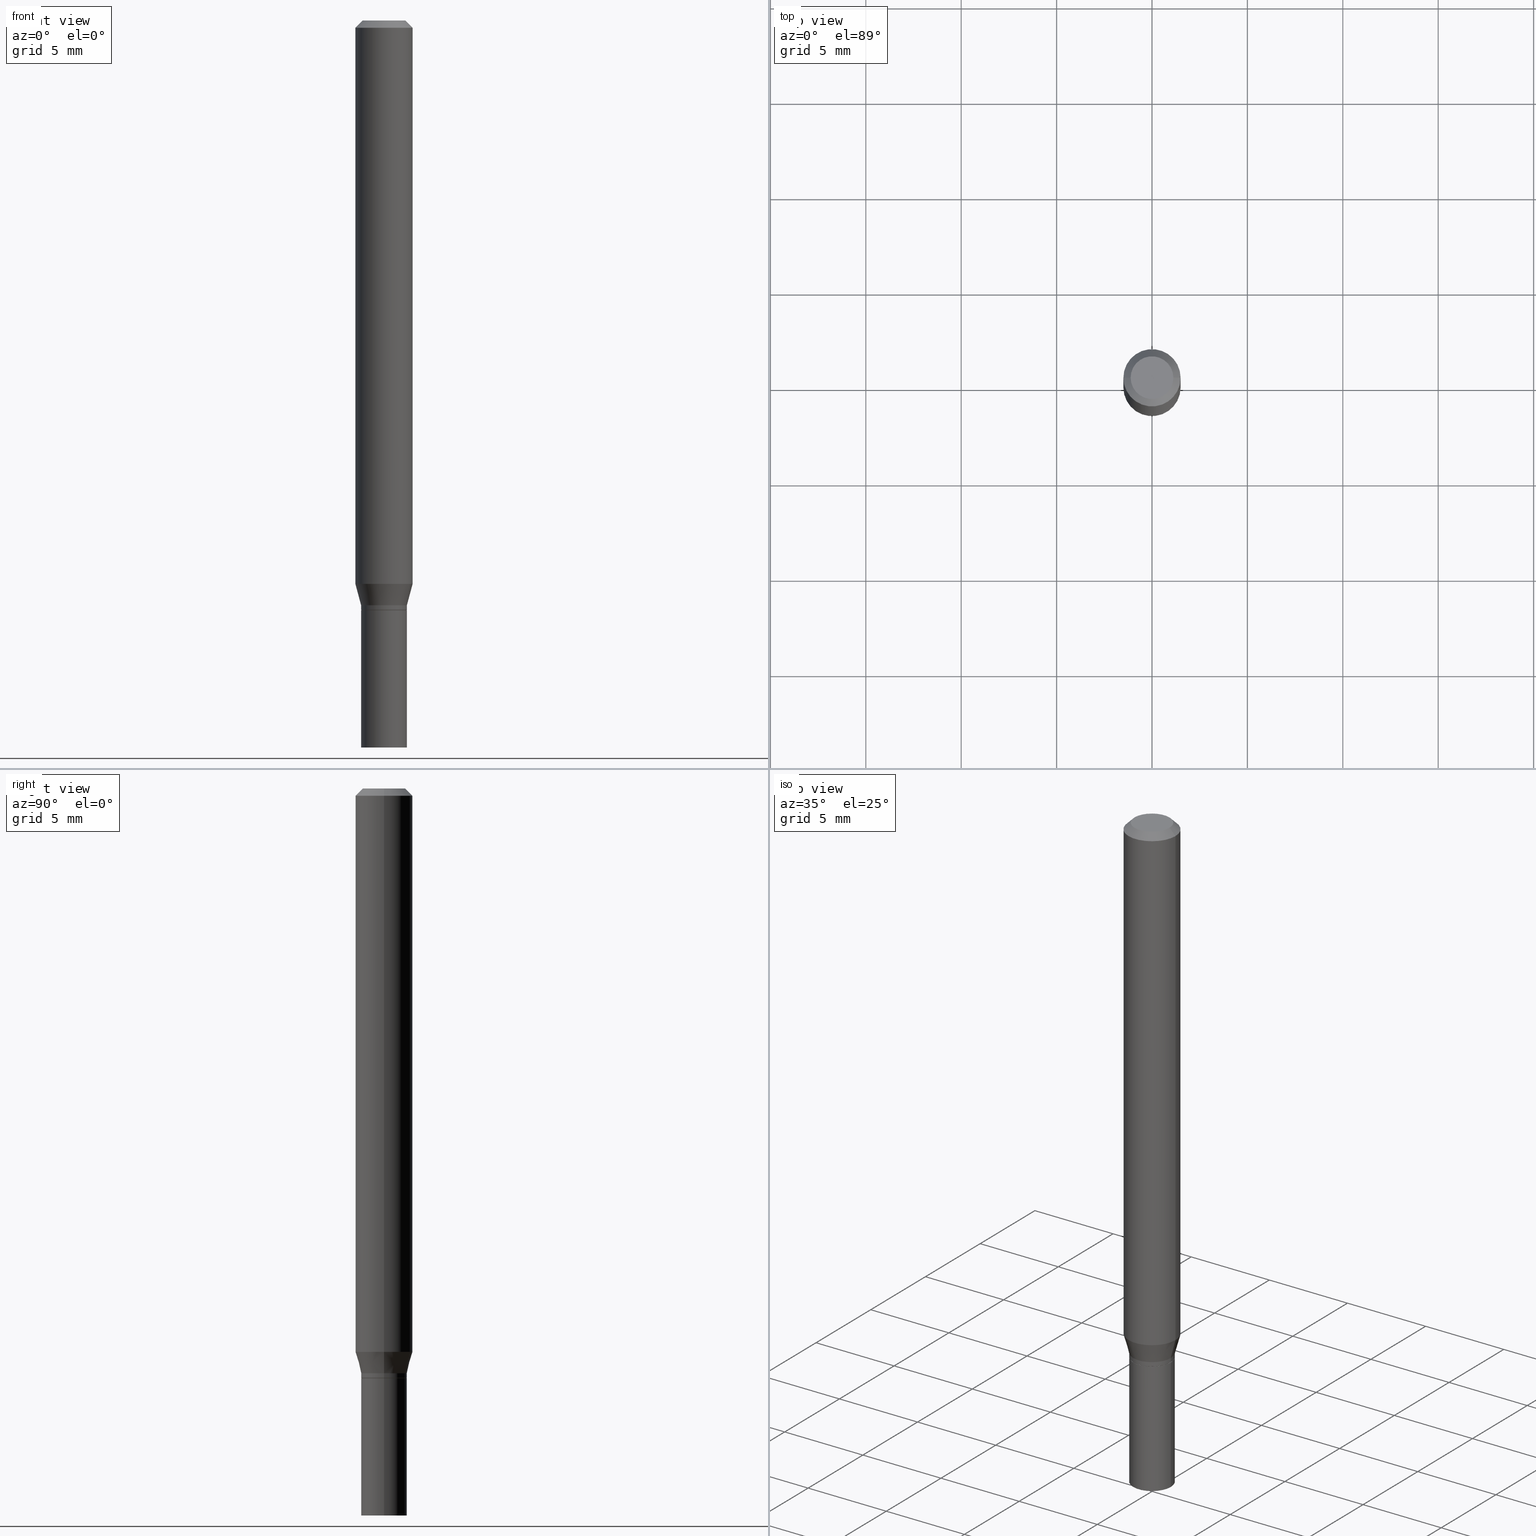
[diagram: canonical four-view strip — front | top / right | iso, engineering-drawing reading convention]
A machine part, canonical four-view strip (front | top / right | iso — engineering-drawing reading convention). The complete STEP part file that produces these views, byte-faithful:
ISO-10303-21;
HEADER;
FILE_DESCRIPTION (( 'STEP AP203' ),
    '1' );
FILE_NAME ('09277.STEP',
    '2024-03-14T18:16:35',
    ( '' ),
    ( '' ),
    'SwSTEP 2.0',
    'SolidWorks 2023',
    '' );
FILE_SCHEMA (( 'CONFIG_CONTROL_DESIGN' ));
ENDSEC;

DATA;
#1 = EDGE_CURVE ( 'NONE', #125, #414, #211, .T. ) ;
#2 = PERSON_AND_ORGANIZATION ( #185, #437 ) ;
#3 = AXIS2_PLACEMENT_3D ( 'NONE', #349, #136, #198 ) ;
#4 = CARTESIAN_POINT ( 'NONE',  ( 0.04674999999999999295, -4.573840553884519999E-15, -1.216500000000000137 ) ) ;
#5 = EDGE_LOOP ( 'NONE', ( #456, #96, #18, #8 ) ) ;
#6 = CARTESIAN_POINT ( 'NONE',  ( 2.974912802724219302E-29, -4.247387048702686999E-15, -1.216500000000000137 ) ) ;
#7 = DIRECTION ( 'NONE',  ( -2.445468806185136597E-29, 3.491481338843145583E-15, 1.000000000000000000 ) ) ;
#8 = ORIENTED_EDGE ( 'NONE', *, *, #351, .F. ) ;
#9 = VECTOR ( 'NONE', #209, 39.37007874015748143 ) ;
#10 = LOCAL_TIME ( 14, 16, 35.00000000000000000, #435 ) ;
#11 = DIRECTION ( 'NONE',  ( 0.7071067811865656694, -2.468850131082446387E-15, 0.7071067811865294761 ) ) ;
#12 = DIRECTION ( 'NONE',  ( 1.000000000000000000, -6.982962677686266711E-15, 0.000000000000000000 ) ) ;
#13 = DIRECTION ( 'NONE',  ( -0.7071067811865656694, 7.493145998870420424E-15, 0.7071067811865294761 ) ) ;
#14 = ORIENTED_EDGE ( 'NONE', *, *, #228, .T. ) ;
#15 = CARTESIAN_POINT ( 'NONE',  ( 2.950458114662367757E-29, -4.212472235314255350E-15, -1.206500000000000128 ) ) ;
#16 = EDGE_CURVE ( 'NONE', #450, #389, #199, .T. ) ;
#17 = CYLINDRICAL_SURFACE ( 'NONE', #345, 0.04725000000000005584 ) ;
#18 = ORIENTED_EDGE ( 'NONE', *, *, #42, .T. ) ;
#19 = DIRECTION ( 'NONE',  ( -1.000000000000000000, 6.982962677686266711E-15, 0.000000000000000000 ) ) ;
#20 = PLANE ( 'NONE',  #309 ) ;
#21 = ORIENTED_EDGE ( 'NONE', *, *, #210, .F. ) ;
#22 = PLANE ( 'NONE',  #169 ) ;
#23 = DIRECTION ( 'NONE',  ( 1.000000000000000000, -6.982962677686266711E-15, 4.876176775795936353E-29 ) ) ;
#24 = APPLICATION_CONTEXT ( 'configuration controlled 3d designs of mechanical parts and assemblies' ) ;
#25 = CARTESIAN_POINT ( 'NONE',  ( 2.950458114662367757E-29, -4.212472235314255350E-15, -1.206500000000000128 ) ) ;
#26 = EDGE_LOOP ( 'NONE', ( #162, #150, #332, #99 ) ) ;
#27 = APPROVAL ( #388, 'UNSPECIFIED' ) ;
#28 = CARTESIAN_POINT ( 'NONE',  ( 3.299449865207057376E-16, 0.04724999999999574679, -1.216500000000000359 ) ) ;
#29 = VECTOR ( 'NONE', #148, 39.37007874015748143 ) ;
#30 = CARTESIAN_POINT ( 'NONE',  ( 3.668203209277704895E-29, -5.237222008264718177E-15, -1.500000000000000222 ) ) ;
#31 = EDGE_CURVE ( 'NONE', #450, #371, #417, .T. ) ;
#32 = MECHANICAL_CONTEXT ( 'NONE', #255, 'mechanical' ) ;
#33 = AXIS2_PLACEMENT_3D ( 'NONE', #271, #94, #312 ) ;
#34 = DIRECTION ( 'NONE',  ( 2.438088387897960049E-29, -3.491481338843145188E-15, -1.000000000000000000 ) ) ;
#35 = PERSON_AND_ORGANIZATION_ROLE ( 'classification_officer' ) ;
#36 = DIRECTION ( 'NONE',  ( -2.445468806185136597E-29, 3.491481338843145583E-15, 1.000000000000000000 ) ) ;
#37 = ADVANCED_FACE ( 'NONE', ( #315 ), #286, .T. ) ;
#38 = DATE_AND_TIME ( #317, #182 ) ;
#39 = DIRECTION ( 'NONE',  ( 1.000000000000000000, -6.982962677686266711E-15, 0.000000000000000000 ) ) ;
#40 = VECTOR ( 'NONE', #166, 39.37007874015748143 ) ;
#41 = CIRCLE ( 'NONE', #445, 0.04725000000000005584 ) ;
#42 = EDGE_CURVE ( 'NONE', #256, #110, #108, .T. ) ;
#43 = DIRECTION ( 'NONE',  ( -2.445468806185136877E-29, 3.491481338843145188E-15, 1.000000000000000000 ) ) ;
#44 = DIMENSIONAL_EXPONENTS ( 1.000000000000000000, 0.000000000000000000, 0.000000000000000000, 0.000000000000000000, 0.000000000000000000, 0.000000000000000000, 0.000000000000000000 ) ;
#45 = DIRECTION ( 'NONE',  ( -2.445468806185136597E-29, 3.491481338843145583E-15, 1.000000000000000000 ) ) ;
#46 = ADVANCED_FACE ( 'NONE', ( #225 ), #436, .T. ) ;
#47 = DIRECTION ( 'NONE',  ( 1.000000000000000000, -6.982962677686266711E-15, 0.000000000000000000 ) ) ;
#48 = AXIS2_PLACEMENT_3D ( 'NONE', #404, #219, #122 ) ;
#49 = LOCAL_TIME ( 14, 16, 35.00000000000000000, #350 ) ;
#50 = CARTESIAN_POINT ( 'NONE',  ( 2.974912802724219302E-29, -4.247387048702686999E-15, -1.216500000000000137 ) ) ;
#51 = CARTESIAN_POINT ( 'NONE',  ( 3.668203209277704895E-29, -5.237222008264718177E-15, -1.500000000000000222 ) ) ;
#52 = CARTESIAN_POINT ( 'NONE',  ( 2.973690068321126501E-29, -4.245641308033265495E-15, -1.216000000000000192 ) ) ;
#53 = VECTOR ( 'NONE', #43, 39.37007874015748143 ) ;
#54 = CONICAL_SURFACE ( 'NONE', #235, 0.05904999999999999832, 0.7853981633974553844 ) ;
#55 = FACE_OUTER_BOUND ( 'NONE', #124, .T. ) ;
#56 = DIRECTION ( 'NONE',  ( 1.000000000000000000, -6.982962677686265922E-15, 4.888540261209747396E-29 ) ) ;
#57 = DIRECTION ( 'NONE',  ( -2.445468806185136597E-29, 3.491481338843145583E-15, 1.000000000000000000 ) ) ;
#58 = LINE ( 'NONE', #89, #40 ) ;
#59 = EDGE_CURVE ( 'NONE', #140, #256, #356, .T. ) ;
#60 = EDGE_LOOP ( 'NONE', ( #224, #201, #93, #269 ) ) ;
#61 = EDGE_CURVE ( 'NONE', #140, #389, #252, .T. ) ;
#62 = DIRECTION ( 'NONE',  ( 2.438088387897960049E-29, -3.491481338843145188E-15, -1.000000000000000000 ) ) ;
#63 = CIRCLE ( 'NONE', #227, 0.04725000000000005584 ) ;
#64 = APPROVAL_PERSON_ORGANIZATION ( #246, #27, #66 ) ;
#65 = APPROVAL ( #394, 'UNSPECIFIED' ) ;
#66 = APPROVAL_ROLE ( '' ) ;
#67 = FACE_OUTER_BOUND ( 'NONE', #342, .T. ) ;
#68 = PERSON_AND_ORGANIZATION ( #185, #437 ) ;
#69 = PERSON_AND_ORGANIZATION ( #185, #437 ) ;
#70 = AXIS2_PLACEMENT_3D ( 'NONE', #406, #329, #263 ) ;
#71 = LOCAL_TIME ( 14, 16, 35.00000000000000000, #208 ) ;
#72 = APPROVAL_ROLE ( '' ) ;
#73 = DIRECTION ( 'NONE',  ( -2.445468806185136597E-29, 3.491481338843145583E-15, 1.000000000000000000 ) ) ;
#74 = CARTESIAN_POINT ( 'NONE',  ( 3.668203209277705088E-31, -5.237222008264718399E-17, -0.01499999999999999944 ) ) ;
#75 = AXIS2_PLACEMENT_3D ( 'NONE', #372, #36, #216 ) ;
#76 = EDGE_LOOP ( 'NONE', ( #321, #88, #14, #384 ) ) ;
#77 = ADVANCED_FACE ( 'NONE', ( #427 ), #241, .T. ) ;
#78 = CARTESIAN_POINT ( 'NONE',  ( 2.973690068321126501E-29, -4.245641308033265495E-15, -1.216000000000000192 ) ) ;
#79 = DIRECTION ( 'NONE',  ( 1.000000000000000000, -6.982962677686266711E-15, 0.000000000000000000 ) ) ;
#80 = VERTEX_POINT ( 'NONE', #316 ) ;
#81 = CALENDAR_DATE ( 2024, 14, 3 ) ;
#82 = CARTESIAN_POINT ( 'NONE',  ( 0.05904999999999999832, -4.471057629578783928E-15, -1.162461800470687701 ) ) ;
#83 = ORIENTED_EDGE ( 'NONE', *, *, #288, .T. ) ;
#84 = DIRECTION ( 'NONE',  ( -2.445468806185136597E-29, 3.491481338843145583E-15, 1.000000000000000000 ) ) ;
#85 = DIRECTION ( 'NONE',  ( -2.445468806185136597E-29, 3.491481338843145583E-15, 1.000000000000000000 ) ) ;
#86 = UNCERTAINTY_MEASURE_WITH_UNIT (LENGTH_MEASURE( 1.000000000000000082E-05 ), #215, 'distance_accuracy_value', 'NONE');
#87 = DIRECTION ( 'NONE',  ( 1.000000000000000000, -6.982962677686256455E-15, 0.000000000000000000 ) ) ;
#88 = ORIENTED_EDGE ( 'NONE', *, *, #151, .T. ) ;
#89 = CARTESIAN_POINT ( 'NONE',  ( -0.04724999999999999339, 3.357314426466472909E-16, -2.324196830145442815E-30 ) ) ;
#90 = CARTESIAN_POINT ( 'NONE',  ( 3.075995059520799729E-16, 0.04404999999999999888, -2.583469029759998662E-16 ) ) ;
#91 = VECTOR ( 'NONE', #344, 39.37007874015748143 ) ;
#92 = FACE_OUTER_BOUND ( 'NONE', #264, .T. ) ;
#93 = ORIENTED_EDGE ( 'NONE', *, *, #257, .T. ) ;
#94 = DIRECTION ( 'NONE',  ( -2.445468806185136597E-29, 3.491481338843145583E-15, 1.000000000000000000 ) ) ;
#95 = VERTEX_POINT ( 'NONE', #243 ) ;
#96 = ORIENTED_EDGE ( 'NONE', *, *, #390, .T. ) ;
#97 = CARTESIAN_POINT ( 'NONE',  ( 3.668203209277705088E-31, -5.237222008264718399E-17, -0.01499999999999999944 ) ) ;
#98 = ADVANCED_FACE ( 'NONE', ( #214 ), #181, .T. ) ;
#99 = ORIENTED_EDGE ( 'NONE', *, *, #59, .F. ) ;
#100 =( NAMED_UNIT ( * ) SI_UNIT ( $, .STERADIAN. ) SOLID_ANGLE_UNIT ( ) );
#101 = AXIS2_PLACEMENT_3D ( 'NONE', #52, #57, #278 ) ;
#102 = AXIS2_PLACEMENT_3D ( 'NONE', #133, #200, #279 ) ;
#103 = DATE_TIME_ROLE ( 'creation_date' ) ;
#104 = EDGE_CURVE ( 'NONE', #80, #313, #63, .T. ) ;
#105 = ORIENTED_EDGE ( 'NONE', *, *, #421, .F. ) ;
#106 = DIRECTION ( 'NONE',  ( 1.000000000000000000, -6.982962677686266711E-15, 4.876176775795936353E-29 ) ) ;
#107 = DATE_AND_TIME ( #426, #10 ) ;
#108 = CIRCLE ( 'NONE', #294, 0.05904999999999999832 ) ;
#109 = CIRCLE ( 'NONE', #419, 0.04724999999999999339 ) ;
#110 = VERTEX_POINT ( 'NONE', #207 ) ;
#111 = DIRECTION ( 'NONE',  ( 1.000000000000000000, 0.000000000000000000, 0.000000000000000000 ) ) ;
#112 = CARTESIAN_POINT ( 'NONE',  ( 0.05904999999999999832, -4.123439461173740327E-16, 2.879382386107500220E-30 ) ) ;
#113 = APPROVAL ( #218, 'UNSPECIFIED' ) ;
#114 = DIRECTION ( 'NONE',  ( 1.000000000000000000, -6.982962677686266711E-15, 4.876176775795936353E-29 ) ) ;
#115 = CIRCLE ( 'NONE', #393, 0.04724999999999999339 ) ;
#116 = CARTESIAN_POINT ( 'NONE',  ( 2.974912802724219302E-29, -4.247387048702686999E-15, -1.216500000000000137 ) ) ;
#117 = DIRECTION ( 'NONE',  ( 1.000000000000000000, -6.982962677686266711E-15, 4.876176775795936353E-29 ) ) ;
#118 = ADVANCED_FACE ( 'NONE', ( #67 ), #20, .F. ) ;
#119 = LINE ( 'NONE', #226, #290 ) ;
#120 = DIRECTION ( 'NONE',  ( 1.000000000000000000, -6.982962677686265922E-15, 4.888540261209747396E-29 ) ) ;
#121 = CIRCLE ( 'NONE', #464, 0.04404999999999999888 ) ;
#122 = DIRECTION ( 'NONE',  ( 1.000000000000000000, -6.982962677686265922E-15, 4.876176775795935793E-29 ) ) ;
#123 = EDGE_CURVE ( 'NONE', #95, #233, #460, .T. ) ;
#124 = EDGE_LOOP ( 'NONE', ( #409, #306 ) ) ;
#125 = VERTEX_POINT ( 'NONE', #293 ) ;
#126 = DIRECTION ( 'NONE',  ( -2.445468806185136597E-29, 3.491481338843145583E-15, 1.000000000000000000 ) ) ;
#127 = ADVANCED_FACE ( 'NONE', ( #176 ), #303, .T. ) ;
#128 = CARTESIAN_POINT ( 'NONE',  ( -0.05904999999999999832, 3.599717260347268549E-16, -0.01499999999999999944 ) ) ;
#129 = AXIS2_PLACEMENT_3D ( 'NONE', #175, #446, #325 ) ;
#130 = VERTEX_POINT ( 'NONE', #259 ) ;
#131 = CARTESIAN_POINT ( 'NONE',  ( 0.05904999999999999832, -4.574846268510561447E-16, -0.01499999999999999944 ) ) ;
#132 = ORIENTED_EDGE ( 'NONE', *, *, #408, .F. ) ;
#133 = CARTESIAN_POINT ( 'NONE',  ( 2.974912802724219302E-29, -4.247387048702686999E-15, -1.216500000000000137 ) ) ;
#134 = APPLICATION_PROTOCOL_DEFINITION ( 'international standard', 'config_control_design', 1994, #24 ) ;
#135 = PRODUCT ( '09277', '09277', '', ( #32 ) ) ;
#136 = DIRECTION ( 'NONE',  ( -2.445468806185136597E-29, 3.491481338843145583E-15, 1.000000000000000000 ) ) ;
#137 = PERSON_AND_ORGANIZATION_ROLE ( 'creator' ) ;
#138 = PRODUCT_DEFINITION_SHAPE ( 'NONE', 'NONE',  #145 ) ;
#139 = CARTESIAN_POINT ( 'NONE',  ( 0.000000000000000000, 0.000000000000000000, 0.000000000000000000 ) ) ;
#140 = VERTEX_POINT ( 'NONE', #82 ) ;
#141 = PERSON_AND_ORGANIZATION_ROLE ( 'creator' ) ;
#142 = ADVANCED_FACE ( 'NONE', ( #398 ), #366, .T. ) ;
#143 = LENGTH_MEASURE_WITH_UNIT ( LENGTH_MEASURE( 0.02539999999999999897 ), #355 );
#144 = CIRCLE ( 'NONE', #405, 0.05904999999999999832 ) ;
#145 = PRODUCT_DEFINITION ( 'UNKNOWN', '', #254, #418 ) ;
#146 = CYLINDRICAL_SURFACE ( 'NONE', #386, 0.05904999999999999832 ) ;
#147 = ORIENTED_EDGE ( 'NONE', *, *, #273, .T. ) ;
#148 = DIRECTION ( 'NONE',  ( -2.445468806185136877E-29, 3.491481338843145188E-15, 1.000000000000000000 ) ) ;
#149 = VECTOR ( 'NONE', #11, 39.37007874015748143 ) ;
#150 = ORIENTED_EDGE ( 'NONE', *, *, #408, .T. ) ;
#151 = EDGE_CURVE ( 'NONE', #233, #95, #399, .T. ) ;
#152 = FACE_OUTER_BOUND ( 'NONE', #26, .T. ) ;
#153 = ORIENTED_EDGE ( 'NONE', *, *, #59, .T. ) ;
#154 = FACE_OUTER_BOUND ( 'NONE', #438, .T. ) ;
#155 = EDGE_LOOP ( 'NONE', ( #238, #186, #105, #369 ) ) ;
#156 = EDGE_LOOP ( 'NONE', ( #331, #168, #299, #444 ) ) ;
#157 = DIRECTION ( 'NONE',  ( -2.445468806185136597E-29, 3.491481338843145583E-15, 1.000000000000000000 ) ) ;
#158 = ADVANCED_FACE ( 'NONE', ( #261 ), #230, .F. ) ;
#159 = EDGE_LOOP ( 'NONE', ( #205, #411 ) ) ;
#160 = DIRECTION ( 'NONE',  ( -2.438088387897960049E-29, 3.491481338843145188E-15, 1.000000000000000000 ) ) ;
#161 = CC_DESIGN_PERSON_AND_ORGANIZATION_ASSIGNMENT ( #212, #35, ( #310 ) ) ;
#162 = ORIENTED_EDGE ( 'NONE', *, *, #61, .T. ) ;
#163 = CARTESIAN_POINT ( 'NONE',  ( 0.04725000000000005584, -4.542417221834932146E-15, -1.206500000000000128 ) ) ;
#164 = LINE ( 'NONE', #377, #91 ) ;
#165 = AXIS2_PLACEMENT_3D ( 'NONE', #74, #184, #453 ) ;
#166 = DIRECTION ( 'NONE',  ( -2.445468806185136877E-29, 3.491481338843145188E-15, 1.000000000000000000 ) ) ;
#167 = DIRECTION ( 'NONE',  ( 0.7071067811865524577, -7.319954787623271823E-15, -0.7071067811865424657 ) ) ;
#168 = ORIENTED_EDGE ( 'NONE', *, *, #292, .T. ) ;
#169 = AXIS2_PLACEMENT_3D ( 'NONE', #423, #160, #304 ) ;
#170 = PERSON_AND_ORGANIZATION ( #185, #437 ) ;
#171 = DIRECTION ( 'NONE',  ( 1.000000000000000000, -6.982962677686268288E-15, 0.000000000000000000 ) ) ;
#172 = DATE_AND_TIME ( #431, #324 ) ;
#173 = PERSON_AND_ORGANIZATION ( #185, #437 ) ;
#174 = CIRCLE ( 'NONE', #129, 0.05904999999999999832 ) ;
#175 = CARTESIAN_POINT ( 'NONE',  ( 3.668203209277705088E-31, -5.237222008264718399E-17, -0.01499999999999999944 ) ) ;
#176 = FACE_OUTER_BOUND ( 'NONE', #156, .T. ) ;
#177 = EDGE_CURVE ( 'NONE', #424, #130, #361, .T. ) ;
#178 = MANIFOLD_SOLID_BREP ( 'Body-Move/Copy2[2]', #443 ) ;
#179 = DATE_AND_TIME ( #81, #71 ) ;
#180 = LINE ( 'NONE', #4, #149 ) ;
#181 = CONICAL_SURFACE ( 'NONE', #428, 0.04674999999999999295, 0.7853981633974739252 ) ;
#182 = LOCAL_TIME ( 14, 16, 35.00000000000000000, #289 ) ;
#183 = EDGE_LOOP ( 'NONE', ( #132, #147, #153, #298 ) ) ;
#184 = DIRECTION ( 'NONE',  ( 2.445468806185136597E-29, -3.491481338843145583E-15, -1.000000000000000000 ) ) ;
#185 = PERSON ( 'UNSPECIFIED', 'UNSPECIFIED', 'UNSPECIFIED', ('UNSPECIFIED'), ('UNSPECIFIED'), ('UNSPECIFIED') ) ;
#186 = ORIENTED_EDGE ( 'NONE', *, *, #191, .T. ) ;
#187 = ORIENTED_EDGE ( 'NONE', *, *, #228, .F. ) ;
#188 = LINE ( 'NONE', #333, #452 ) ;
#189 = ORIENTED_EDGE ( 'NONE', *, *, #177, .T. ) ;
#190 = MANIFOLD_SOLID_BREP ( 'Body-Move/Copy2[1]', #202 ) ;
#191 = EDGE_CURVE ( 'NONE', #80, #450, #223, .T. ) ;
#192 = CARTESIAN_POINT ( 'NONE',  ( -0.04724999999999999339, -4.406573085837055149E-15, -1.216500000000000137 ) ) ;
#193 = CIRCLE ( 'NONE', #101, 0.04725000000000005584 ) ;
#194 = AXIS2_PLACEMENT_3D ( 'NONE', #28, #62, #204 ) ;
#195 = ORIENTED_EDGE ( 'NONE', *, *, #217, .T. ) ;
#196 = PLANE ( 'NONE',  #194 ) ;
#197 = DIRECTION ( 'NONE',  ( 2.445468806185136597E-29, -3.491481338843145583E-15, -1.000000000000000000 ) ) ;
#198 = DIRECTION ( 'NONE',  ( 1.000000000000000000, -6.982962677686273021E-15, 0.000000000000000000 ) ) ;
#199 = LINE ( 'NONE', #343, #268 ) ;
#200 = DIRECTION ( 'NONE',  ( -2.445468806185136597E-29, 3.491481338843145583E-15, 1.000000000000000000 ) ) ;
#201 = ORIENTED_EDGE ( 'NONE', *, *, #31, .T. ) ;
#202 = CLOSED_SHELL ( 'NONE', ( #127, #311, #346, #440 ) ) ;
#203 = VECTOR ( 'NONE', #270, 39.37007874015748143 ) ;
#204 = DIRECTION ( 'NONE',  ( -1.000000000000000000, 6.982962677686265922E-15, -4.876176775795935793E-29 ) ) ;
#205 = ORIENTED_EDGE ( 'NONE', *, *, #123, .F. ) ;
#206 = EDGE_CURVE ( 'NONE', #110, #256, #174, .T. ) ;
#207 = CARTESIAN_POINT ( 'NONE',  ( -0.05904999999999999832, -1.635967466305689734E-15, -0.01499999999999999944 ) ) ;
#208 = COORDINATED_UNIVERSAL_TIME_OFFSET ( 5, 0, .BEHIND. ) ;
#209 = DIRECTION ( 'NONE',  ( -2.445468806185136877E-29, 3.491481338843145188E-15, 1.000000000000000000 ) ) ;
#210 = EDGE_CURVE ( 'NONE', #424, #374, #115, .T. ) ;
#211 = CIRCLE ( 'NONE', #337, 0.04404999999999999888 ) ;
#212 = PERSON_AND_ORGANIZATION ( #185, #437 ) ;
#213 = APPROVAL_PERSON_ORGANIZATION ( #392, #65, #395 ) ;
#214 = FACE_OUTER_BOUND ( 'NONE', #76, .T. ) ;
#215 =( CONVERSION_BASED_UNIT ( 'INCH', #143 ) LENGTH_UNIT ( ) NAMED_UNIT ( #44 ) );
#216 = DIRECTION ( 'NONE',  ( 1.000000000000000000, -6.982962677686268288E-15, 0.000000000000000000 ) ) ;
#217 = EDGE_CURVE ( 'NONE', #233, #80, #188, .T. ) ;
#218 = APPROVAL_STATUS ( 'not_yet_approved' ) ;
#219 = DIRECTION ( 'NONE',  ( -2.438088387897960049E-29, 3.491481338843145188E-15, 1.000000000000000000 ) ) ;
#220 = AXIS2_PLACEMENT_3D ( 'NONE', #6, #157, #367 ) ;
#221 = CC_DESIGN_SECURITY_CLASSIFICATION ( #310, ( #254 ) ) ;
#222 = CARTESIAN_POINT ( 'NONE',  ( 2.842764071432877128E-29, -4.058713683461410585E-15, -1.162461800470687701 ) ) ;
#223 = LINE ( 'NONE', #370, #53 ) ;
#224 = ORIENTED_EDGE ( 'NONE', *, *, #16, .F. ) ;
#225 = FACE_OUTER_BOUND ( 'NONE', #60, .T. ) ;
#226 = CARTESIAN_POINT ( 'NONE',  ( 0.04725000000000005584, -4.542417221834932146E-15, -1.206500000000000128 ) ) ;
#227 = AXIS2_PLACEMENT_3D ( 'NONE', #78, #73, #441 ) ;
#228 = EDGE_CURVE ( 'NONE', #95, #313, #180, .T. ) ;
#229 = SHAPE_DEFINITION_REPRESENTATION ( #138, #357 ) ;
#230 = PLANE ( 'NONE',  #48 ) ;
#231 = CC_DESIGN_PERSON_AND_ORGANIZATION_ASSIGNMENT ( #2, #250, ( #135 ) ) ;
#232 = DIRECTION ( 'NONE',  ( -2.445468806185136597E-29, 3.491481338843145583E-15, 1.000000000000000000 ) ) ;
#233 = VERTEX_POINT ( 'NONE', #401 ) ;
#234 = DIRECTION ( 'NONE',  ( -2.445468806185136597E-29, 3.491481338843145583E-15, 1.000000000000000000 ) ) ;
#235 = AXIS2_PLACEMENT_3D ( 'NONE', #97, #197, #19 ) ;
#236 = CARTESIAN_POINT ( 'NONE',  ( -0.05904999999999999832, 4.195754854663391478E-16, -2.904631170795521892E-30 ) ) ;
#237 = ADVANCED_FACE ( 'NONE', ( #152 ), #146, .T. ) ;
#238 = ORIENTED_EDGE ( 'NONE', *, *, #300, .T. ) ;
#239 = CARTESIAN_POINT ( 'NONE',  ( 0.04724999999999999339, -5.567166994785394973E-15, -1.500000000000000222 ) ) ;
#240 = DIRECTION ( 'NONE',  ( -2.445468806185136597E-29, 3.491481338843145583E-15, 1.000000000000000000 ) ) ;
#241 = CYLINDRICAL_SURFACE ( 'NONE', #275, 0.05904999999999999832 ) ;
#242 = LINE ( 'NONE', #236, #203 ) ;
#243 = CARTESIAN_POINT ( 'NONE',  ( 0.04674999999999999295, -4.573840553884519999E-15, -1.216500000000000137 ) ) ;
#244 = CIRCLE ( 'NONE', #284, 0.04724999999999999339 ) ;
#245 =( GEOMETRIC_REPRESENTATION_CONTEXT ( 3 ) GLOBAL_UNCERTAINTY_ASSIGNED_CONTEXT ( ( #86 ) ) GLOBAL_UNIT_ASSIGNED_CONTEXT ( ( #215, #439, #100 ) ) REPRESENTATION_CONTEXT ( 'NONE', 'WORKASPACE' ) );
#246 = PERSON_AND_ORGANIZATION ( #185, #437 ) ;
#247 = CC_DESIGN_PERSON_AND_ORGANIZATION_ASSIGNMENT ( #170, #323, ( #254 ) ) ;
#248 = APPROVAL_DATE_TIME ( #354, #113 ) ;
#249 = DIRECTION ( 'NONE',  ( -2.445468806185136597E-29, 3.491481338843145583E-15, 1.000000000000000000 ) ) ;
#250 = PERSON_AND_ORGANIZATION_ROLE ( 'design_owner' ) ;
#251 = DIRECTION ( 'NONE',  ( -2.445468806185136597E-29, 3.491481338843145583E-15, 1.000000000000000000 ) ) ;
#252 = CIRCLE ( 'NONE', #3, 0.05904999999999999832 ) ;
#253 = DATE_TIME_ROLE ( 'classification_date' ) ;
#254 = PRODUCT_DEFINITION_FORMATION_WITH_SPECIFIED_SOURCE ( 'ANY', '', #135, .NOT_KNOWN. ) ;
#255 = APPLICATION_CONTEXT ( 'configuration controlled 3d designs of mechanical parts and assemblies' ) ;
#256 = VERTEX_POINT ( 'NONE', #447 ) ;
#257 = EDGE_CURVE ( 'NONE', #371, #140, #119, .T. ) ;
#258 = CIRCLE ( 'NONE', #378, 0.04724999999999999339 ) ;
#259 = CARTESIAN_POINT ( 'NONE',  ( 0.04724999999999999339, -4.577332035223362218E-15, -1.216500000000000137 ) ) ;
#260 = CC_DESIGN_DATE_AND_TIME_ASSIGNMENT ( #107, #253, ( #310 ) ) ;
#261 = FACE_OUTER_BOUND ( 'NONE', #159, .T. ) ;
#262 = ORIENTED_EDGE ( 'NONE', *, *, #283, .F. ) ;
#263 = DIRECTION ( 'NONE',  ( 1.000000000000000000, -6.982962677686266711E-15, 4.876176775795936353E-29 ) ) ;
#264 = EDGE_LOOP ( 'NONE', ( #358, #308, #335, #379 ) ) ;
#265 = ORIENTED_EDGE ( 'NONE', *, *, #351, .T. ) ;
#266 = CARTESIAN_POINT ( 'NONE',  ( 2.974912802724219302E-29, -4.247387048702686999E-15, -1.216500000000000137 ) ) ;
#267 = ADVANCED_FACE ( 'NONE', ( #154 ), #17, .T. ) ;
#268 = VECTOR ( 'NONE', #412, 39.37007874015748854 ) ;
#269 = ORIENTED_EDGE ( 'NONE', *, *, #273, .F. ) ;
#270 = DIRECTION ( 'NONE',  ( -2.445468806185136877E-29, 3.491481338843145188E-15, 1.000000000000000000 ) ) ;
#271 = CARTESIAN_POINT ( 'NONE',  ( 0.000000000000000000, 0.000000000000000000, 0.000000000000000000 ) ) ;
#272 = ORIENTED_EDGE ( 'NONE', *, *, #104, .T. ) ;
#273 = EDGE_CURVE ( 'NONE', #389, #140, #144, .T. ) ;
#274 = CARTESIAN_POINT ( 'NONE',  ( -0.05904999999999999832, -3.639138197995071092E-15, -1.162461800470687701 ) ) ;
#275 = AXIS2_PLACEMENT_3D ( 'NONE', #348, #318, #106 ) ;
#276 = APPROVAL_PERSON_ORGANIZATION ( #69, #113, #72 ) ;
#277 = DIRECTION ( 'NONE',  ( -2.445468806185136597E-29, 3.491481338843145583E-15, 1.000000000000000000 ) ) ;
#278 = DIRECTION ( 'NONE',  ( 1.000000000000000000, -6.982962677686257244E-15, 0.000000000000000000 ) ) ;
#279 = DIRECTION ( 'NONE',  ( 1.000000000000000000, -6.982962677686266711E-15, 0.000000000000000000 ) ) ;
#280 = EDGE_CURVE ( 'NONE', #414, #125, #121, .T. ) ;
#281 = ORIENTED_EDGE ( 'NONE', *, *, #292, .F. ) ;
#282 = SECURITY_CLASSIFICATION_LEVEL ( 'unclassified' ) ;
#283 = EDGE_CURVE ( 'NONE', #339, #130, #244, .T. ) ;
#284 = AXIS2_PLACEMENT_3D ( 'NONE', #266, #327, #87 ) ;
#285 = CONICAL_SURFACE ( 'NONE', #353, 0.04725000000000005584, 0.2617993877991504625 ) ;
#286 = CYLINDRICAL_SURFACE ( 'NONE', #319, 0.04725000000000005584 ) ;
#287 = DIRECTION ( 'NONE',  ( 0.000000000000000000, 0.000000000000000000, 1.000000000000000000 ) ) ;
#288 = EDGE_CURVE ( 'NONE', #374, #424, #258, .T. ) ;
#289 = COORDINATED_UNIVERSAL_TIME_OFFSET ( 5, 0, .BEHIND. ) ;
#290 = VECTOR ( 'NONE', #330, 39.37007874015748854 ) ;
#291 = APPROVAL_DATE_TIME ( #179, #27 ) ;
#292 = EDGE_CURVE ( 'NONE', #374, #339, #58, .T. ) ;
#293 = CARTESIAN_POINT ( 'NONE',  ( -0.04404999999999999888, 3.337856159934030687E-16, -2.090942999999208688E-16 ) ) ;
#294 = AXIS2_PLACEMENT_3D ( 'NONE', #410, #240, #39 ) ;
#295 = DIRECTION ( 'NONE',  ( -2.445468806185136597E-29, 3.491481338843145583E-15, 1.000000000000000000 ) ) ;
#296 = ORIENTED_EDGE ( 'NONE', *, *, #280, .T. ) ;
#297 = CARTESIAN_POINT ( 'NONE',  ( 0.000000000000000000, 0.000000000000000000, 0.000000000000000000 ) ) ;
#298 = ORIENTED_EDGE ( 'NONE', *, *, #206, .F. ) ;
#299 = ORIENTED_EDGE ( 'NONE', *, *, #383, .F. ) ;
#300 = EDGE_CURVE ( 'NONE', #313, #80, #193, .T. ) ;
#301 = DIRECTION ( 'NONE',  ( -2.445468806185136597E-29, 3.491481338843145583E-15, 1.000000000000000000 ) ) ;
#302 = EDGE_LOOP ( 'NONE', ( #21, #363 ) ) ;
#303 = CYLINDRICAL_SURFACE ( 'NONE', #70, 0.04724999999999999339 ) ;
#304 = DIRECTION ( 'NONE',  ( 1.000000000000000000, -6.982962677686265922E-15, 4.876176775795935793E-29 ) ) ;
#305 = FACE_OUTER_BOUND ( 'NONE', #381, .T. ) ;
#306 = ORIENTED_EDGE ( 'NONE', *, *, #283, .T. ) ;
#307 = CARTESIAN_POINT ( 'NONE',  ( 2.974912802724219302E-29, -4.247387048702686999E-15, -1.216500000000000137 ) ) ;
#308 = ORIENTED_EDGE ( 'NONE', *, *, #16, .T. ) ;
#309 = AXIS2_PLACEMENT_3D ( 'NONE', #90, #34, #387 ) ;
#310 = SECURITY_CLASSIFICATION ( '', '', #282 ) ;
#311 = ADVANCED_FACE ( 'NONE', ( #341 ), #22, .F. ) ;
#312 = DIRECTION ( 'NONE',  ( 1.000000000000000000, -6.982962677686266711E-15, 4.876176775795936353E-29 ) ) ;
#313 = VERTEX_POINT ( 'NONE', #347 ) ;
#314 = LINE ( 'NONE', #128, #360 ) ;
#315 = FACE_OUTER_BOUND ( 'NONE', #155, .T. ) ;
#316 = CARTESIAN_POINT ( 'NONE',  ( -0.04725000000000005584, -3.909909865386617268E-15, -1.216000000000000192 ) ) ;
#317 = CALENDAR_DATE ( 2024, 14, 3 ) ;
#318 = DIRECTION ( 'NONE',  ( -2.445468806185136597E-29, 3.491481338843145583E-15, 1.000000000000000000 ) ) ;
#319 = AXIS2_PLACEMENT_3D ( 'NONE', #466, #249, #23 ) ;
#320 = CC_DESIGN_APPROVAL ( #113, ( #254 ) ) ;
#321 = ORIENTED_EDGE ( 'NONE', *, *, #217, .F. ) ;
#322 = CALENDAR_DATE ( 2024, 14, 3 ) ;
#323 = PERSON_AND_ORGANIZATION_ROLE ( 'design_supplier' ) ;
#324 = LOCAL_TIME ( 14, 16, 35.00000000000000000, #465 ) ;
#325 = DIRECTION ( 'NONE',  ( 1.000000000000000000, -6.982962677686266711E-15, 0.000000000000000000 ) ) ;
#326 = CC_DESIGN_PERSON_AND_ORGANIZATION_ASSIGNMENT ( #173, #141, ( #254 ) ) ;
#327 = DIRECTION ( 'NONE',  ( -2.445468806185136597E-29, 3.491481338843145583E-15, 1.000000000000000000 ) ) ;
#328 = ORIENTED_EDGE ( 'NONE', *, *, #206, .T. ) ;
#329 = DIRECTION ( 'NONE',  ( -2.445468806185136597E-29, 3.491481338843145583E-15, 1.000000000000000000 ) ) ;
#330 = DIRECTION ( 'NONE',  ( 0.2588190451025217387, 1.565188264969619207E-15, 0.9659258262890679791 ) ) ;
#331 = ORIENTED_EDGE ( 'NONE', *, *, #210, .T. ) ;
#332 = ORIENTED_EDGE ( 'NONE', *, *, #42, .F. ) ;
#333 = CARTESIAN_POINT ( 'NONE',  ( -0.04674999999999999295, -3.915208319734840459E-15, -1.216500000000000137 ) ) ;
#334 = ORIENTED_EDGE ( 'NONE', *, *, #1, .F. ) ;
#335 = ORIENTED_EDGE ( 'NONE', *, *, #61, .F. ) ;
#336 = CARTESIAN_POINT ( 'NONE',  ( -0.04724999999999999339, -4.406573085837055149E-15, -1.500000000000000222 ) ) ;
#337 = AXIS2_PLACEMENT_3D ( 'NONE', #415, #277, #56 ) ;
#338 = CC_DESIGN_APPROVAL ( #27, ( #310 ) ) ;
#339 = VERTEX_POINT ( 'NONE', #192 ) ;
#340 = FACE_OUTER_BOUND ( 'NONE', #457, .T. ) ;
#341 = FACE_OUTER_BOUND ( 'NONE', #302, .T. ) ;
#342 = EDGE_LOOP ( 'NONE', ( #364, #296 ) ) ;
#343 = CARTESIAN_POINT ( 'NONE',  ( -0.04725000000000005584, -3.876740792667607122E-15, -1.206500000000000128 ) ) ;
#344 = DIRECTION ( 'NONE',  ( -2.445468806185136877E-29, 3.491481338843145188E-15, 1.000000000000000000 ) ) ;
#345 = AXIS2_PLACEMENT_3D ( 'NONE', #442, #301, #114 ) ;
#346 = ADVANCED_FACE ( 'NONE', ( #340 ), #458, .T. ) ;
#347 = CARTESIAN_POINT ( 'NONE',  ( 0.04725000000000005584, -4.575586294553942292E-15, -1.216000000000000192 ) ) ;
#348 = CARTESIAN_POINT ( 'NONE',  ( 0.000000000000000000, 0.000000000000000000, 0.000000000000000000 ) ) ;
#349 = CARTESIAN_POINT ( 'NONE',  ( 2.842764071432877128E-29, -4.058713683461410585E-15, -1.162461800470687701 ) ) ;
#350 = COORDINATED_UNIVERSAL_TIME_OFFSET ( 5, 0, .BEHIND. ) ;
#351 = EDGE_CURVE ( 'NONE', #125, #110, #314, .T. ) ;
#352 = AXIS2_PLACEMENT_3D ( 'NONE', #50, #295, #79 ) ;
#353 = AXIS2_PLACEMENT_3D ( 'NONE', #461, #380, #382 ) ;
#354 = DATE_AND_TIME ( #322, #49 ) ;
#355 =( LENGTH_UNIT ( ) NAMED_UNIT ( * ) SI_UNIT ( $, .METRE. ) );
#356 = LINE ( 'NONE', #112, #9 ) ;
#357 = ADVANCED_BREP_SHAPE_REPRESENTATION ( '09277', ( #190, #178, #407 ), #245 ) ;
#358 = ORIENTED_EDGE ( 'NONE', *, *, #421, .T. ) ;
#359 = CC_DESIGN_DATE_AND_TIME_ASSIGNMENT ( #172, #103, ( #145 ) ) ;
#360 = VECTOR ( 'NONE', #455, 39.37007874015748854 ) ;
#361 = LINE ( 'NONE', #402, #29 ) ;
#362 = DIRECTION ( 'NONE',  ( 1.000000000000000000, -6.982962677686273021E-15, 0.000000000000000000 ) ) ;
#363 = ORIENTED_EDGE ( 'NONE', *, *, #288, .F. ) ;
#364 = ORIENTED_EDGE ( 'NONE', *, *, #1, .T. ) ;
#365 = DIRECTION ( 'NONE',  ( -2.445468806185136597E-29, 3.491481338843145583E-15, 1.000000000000000000 ) ) ;
#366 = CONICAL_SURFACE ( 'NONE', #165, 0.05904999999999999832, 0.7853981633974553844 ) ;
#367 = DIRECTION ( 'NONE',  ( 1.000000000000000000, -6.982962677686266711E-15, 0.000000000000000000 ) ) ;
#368 = VECTOR ( 'NONE', #167, 39.37007874015748854 ) ;
#369 = ORIENTED_EDGE ( 'NONE', *, *, #432, .F. ) ;
#370 = CARTESIAN_POINT ( 'NONE',  ( -0.04725000000000005584, 3.357314426466477346E-16, -2.324196830145445968E-30 ) ) ;
#371 = VERTEX_POINT ( 'NONE', #163 ) ;
#372 = CARTESIAN_POINT ( 'NONE',  ( 2.950458114662367757E-29, -4.212472235314255350E-15, -1.206500000000000128 ) ) ;
#373 = DIRECTION ( 'NONE',  ( 1.000000000000000000, -6.982962677686266711E-15, 0.000000000000000000 ) ) ;
#374 = VERTEX_POINT ( 'NONE', #336 ) ;
#375 = ORIENTED_EDGE ( 'NONE', *, *, #191, .F. ) ;
#376 = ADVANCED_FACE ( 'NONE', ( #305 ), #54, .T. ) ;
#377 = CARTESIAN_POINT ( 'NONE',  ( 0.04725000000000005584, -3.299449865206765004E-16, 2.303993526563582633E-30 ) ) ;
#378 = AXIS2_PLACEMENT_3D ( 'NONE', #30, #232, #373 ) ;
#379 = ORIENTED_EDGE ( 'NONE', *, *, #257, .F. ) ;
#380 = DIRECTION ( 'NONE',  ( -2.445468806185136597E-29, 3.491481338843145583E-15, 1.000000000000000000 ) ) ;
#381 = EDGE_LOOP ( 'NONE', ( #449, #334, #265, #328 ) ) ;
#382 = DIRECTION ( 'NONE',  ( 1.000000000000000000, -6.982962677686268288E-15, 0.000000000000000000 ) ) ;
#383 = EDGE_CURVE ( 'NONE', #130, #339, #109, .T. ) ;
#384 = ORIENTED_EDGE ( 'NONE', *, *, #104, .F. ) ;
#385 = DIRECTION ( 'NONE',  ( 1.000000000000000000, -6.982962677686268288E-15, 0.000000000000000000 ) ) ;
#386 = AXIS2_PLACEMENT_3D ( 'NONE', #297, #84, #117 ) ;
#387 = DIRECTION ( 'NONE',  ( -1.000000000000000000, 6.982962677686265922E-15, -4.876176775795935793E-29 ) ) ;
#388 = APPROVAL_STATUS ( 'not_yet_approved' ) ;
#389 = VERTEX_POINT ( 'NONE', #274 ) ;
#390 = EDGE_CURVE ( 'NONE', #414, #256, #413, .T. ) ;
#391 = APPROVAL_DATE_TIME ( #38, #65 ) ;
#392 = PERSON_AND_ORGANIZATION ( #185, #437 ) ;
#393 = AXIS2_PLACEMENT_3D ( 'NONE', #51, #365, #47 ) ;
#394 = APPROVAL_STATUS ( 'not_yet_approved' ) ;
#395 = APPROVAL_ROLE ( '' ) ;
#396 = ADVANCED_FACE ( 'NONE', ( #416 ), #429, .T. ) ;
#397 = ORIENTED_EDGE ( 'NONE', *, *, #300, .F. ) ;
#398 = FACE_OUTER_BOUND ( 'NONE', #5, .T. ) ;
#399 = CIRCLE ( 'NONE', #352, 0.04674999999999999295 ) ;
#400 = CC_DESIGN_APPROVAL ( #65, ( #145 ) ) ;
#401 = CARTESIAN_POINT ( 'NONE',  ( -0.04674999999999999295, -3.912559092560728469E-15, -1.216500000000000137 ) ) ;
#402 = CARTESIAN_POINT ( 'NONE',  ( 0.04724999999999999339, -3.299449865206760567E-16, 2.303993526563579480E-30 ) ) ;
#403 = EDGE_LOOP ( 'NONE', ( #422, #195, #397, #187 ) ) ;
#404 = CARTESIAN_POINT ( 'NONE',  ( 2.974912802724219302E-29, -4.247387048702686999E-15, -1.216500000000000137 ) ) ;
#405 = AXIS2_PLACEMENT_3D ( 'NONE', #222, #85, #362 ) ;
#406 = CARTESIAN_POINT ( 'NONE',  ( 0.000000000000000000, 0.000000000000000000, 0.000000000000000000 ) ) ;
#407 = AXIS2_PLACEMENT_3D ( 'NONE', #139, #287, #111 ) ;
#408 = EDGE_CURVE ( 'NONE', #389, #110, #242, .T. ) ;
#409 = ORIENTED_EDGE ( 'NONE', *, *, #383, .T. ) ;
#410 = CARTESIAN_POINT ( 'NONE',  ( 3.668203209277705088E-31, -5.237222008264718399E-17, -0.01499999999999999944 ) ) ;
#411 = ORIENTED_EDGE ( 'NONE', *, *, #151, .F. ) ;
#412 = DIRECTION ( 'NONE',  ( -0.2588190451025217387, 5.211531920934551042E-15, 0.9659258262890679791 ) ) ;
#413 = LINE ( 'NONE', #131, #368 ) ;
#414 = VERTEX_POINT ( 'NONE', #420 ) ;
#415 = CARTESIAN_POINT ( 'NONE',  ( 5.113335882009178277E-45, -7.300488465081862281E-31, -2.090942999999186255E-16 ) ) ;
#416 = FACE_OUTER_BOUND ( 'NONE', #403, .T. ) ;
#417 = CIRCLE ( 'NONE', #463, 0.04725000000000005584 ) ;
#418 = DESIGN_CONTEXT ( 'detailed design', #24, 'design' ) ;
#419 = AXIS2_PLACEMENT_3D ( 'NONE', #307, #126, #459 ) ;
#420 = CARTESIAN_POINT ( 'NONE',  ( 0.04404999999999999888, -3.798447818264464023E-16, -2.090942999999162343E-16 ) ) ;
#421 = EDGE_CURVE ( 'NONE', #371, #450, #41, .T. ) ;
#422 = ORIENTED_EDGE ( 'NONE', *, *, #123, .T. ) ;
#423 = CARTESIAN_POINT ( 'NONE',  ( 3.576687321579069994E-29, -5.368277968210015545E-15, -1.500000000000000222 ) ) ;
#424 = VERTEX_POINT ( 'NONE', #239 ) ;
#425 = PRODUCT_RELATED_PRODUCT_CATEGORY ( 'detail', '', ( #135 ) ) ;
#426 = CALENDAR_DATE ( 2024, 14, 3 ) ;
#427 = FACE_OUTER_BOUND ( 'NONE', #183, .T. ) ;
#428 = AXIS2_PLACEMENT_3D ( 'NONE', #116, #7, #12 ) ;
#429 = CONICAL_SURFACE ( 'NONE', #102, 0.04674999999999999295, 0.7853981633974739252 ) ;
#430 = ADVANCED_FACE ( 'NONE', ( #92 ), #285, .T. ) ;
#431 = CALENDAR_DATE ( 2024, 14, 3 ) ;
#432 = EDGE_CURVE ( 'NONE', #313, #371, #164, .T. ) ;
#433 = APPLICATION_PROTOCOL_DEFINITION ( 'international standard', 'config_control_design', 1994, #255 ) ;
#434 = ORIENTED_EDGE ( 'NONE', *, *, #432, .T. ) ;
#435 = COORDINATED_UNIVERSAL_TIME_OFFSET ( 5, 0, .BEHIND. ) ;
#436 = CONICAL_SURFACE ( 'NONE', #75, 0.04725000000000005584, 0.2617993877991504625 ) ;
#437 = ORGANIZATION ( 'UNSPECIFIED', 'UNSPECIFIED', '' ) ;
#438 = EDGE_LOOP ( 'NONE', ( #375, #272, #434, #451 ) ) ;
#439 =( NAMED_UNIT ( * ) PLANE_ANGLE_UNIT ( ) SI_UNIT ( $, .RADIAN. ) );
#440 = ADVANCED_FACE ( 'NONE', ( #55 ), #196, .F. ) ;
#441 = DIRECTION ( 'NONE',  ( 1.000000000000000000, -6.982962677686257244E-15, 0.000000000000000000 ) ) ;
#442 = CARTESIAN_POINT ( 'NONE',  ( 0.000000000000000000, 0.000000000000000000, 0.000000000000000000 ) ) ;
#443 = CLOSED_SHELL ( 'NONE', ( #37, #396, #142, #237, #430, #46, #77, #376, #118, #158, #98, #267 ) ) ;
#444 = ORIENTED_EDGE ( 'NONE', *, *, #177, .F. ) ;
#445 = AXIS2_PLACEMENT_3D ( 'NONE', #25, #234, #385 ) ;
#446 = DIRECTION ( 'NONE',  ( -2.445468806185136597E-29, 3.491481338843145583E-15, 1.000000000000000000 ) ) ;
#447 = CARTESIAN_POINT ( 'NONE',  ( 0.05904999999999999832, -4.647161662000212105E-16, -0.01499999999999999944 ) ) ;
#448 = CARTESIAN_POINT ( 'NONE',  ( 5.113335882009178277E-45, -7.300488465081862281E-31, -2.090942999999186255E-16 ) ) ;
#449 = ORIENTED_EDGE ( 'NONE', *, *, #390, .F. ) ;
#450 = VERTEX_POINT ( 'NONE', #462 ) ;
#451 = ORIENTED_EDGE ( 'NONE', *, *, #31, .F. ) ;
#452 = VECTOR ( 'NONE', #13, 39.37007874015748143 ) ;
#453 = DIRECTION ( 'NONE',  ( -1.000000000000000000, 6.982962677686266711E-15, 0.000000000000000000 ) ) ;
#454 = CC_DESIGN_PERSON_AND_ORGANIZATION_ASSIGNMENT ( #68, #137, ( #145 ) ) ;
#455 = DIRECTION ( 'NONE',  ( -0.7071067811865524577, 2.468850131082309125E-15, -0.7071067811865424657 ) ) ;
#456 = ORIENTED_EDGE ( 'NONE', *, *, #280, .F. ) ;
#457 = EDGE_LOOP ( 'NONE', ( #281, #83, #189, #262 ) ) ;
#458 = CYLINDRICAL_SURFACE ( 'NONE', #33, 0.04724999999999999339 ) ;
#459 = DIRECTION ( 'NONE',  ( 1.000000000000000000, -6.982962677686256455E-15, 0.000000000000000000 ) ) ;
#460 = CIRCLE ( 'NONE', #220, 0.04674999999999999295 ) ;
#461 = CARTESIAN_POINT ( 'NONE',  ( 2.950458114662367757E-29, -4.212472235314255350E-15, -1.206500000000000128 ) ) ;
#462 = CARTESIAN_POINT ( 'NONE',  ( -0.04725000000000005584, -3.757939495331338713E-15, -1.206500000000000128 ) ) ;
#463 = AXIS2_PLACEMENT_3D ( 'NONE', #15, #251, #171 ) ;
#464 = AXIS2_PLACEMENT_3D ( 'NONE', #448, #45, #120 ) ;
#465 = COORDINATED_UNIVERSAL_TIME_OFFSET ( 5, 0, .BEHIND. ) ;
#466 = CARTESIAN_POINT ( 'NONE',  ( 0.000000000000000000, 0.000000000000000000, 0.000000000000000000 ) ) ;
ENDSEC;
END-ISO-10303-21;
